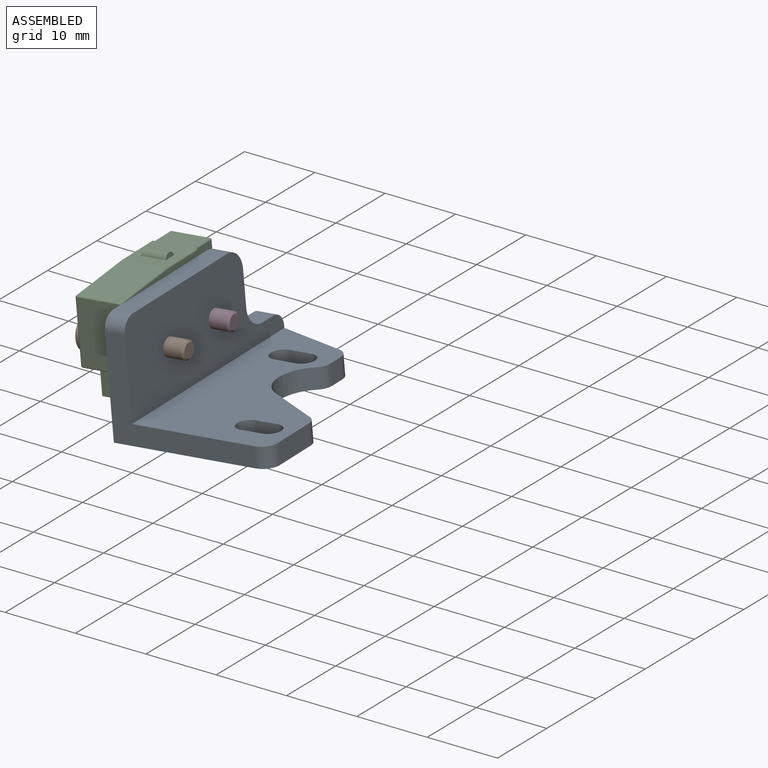
[diagram: assembled view]
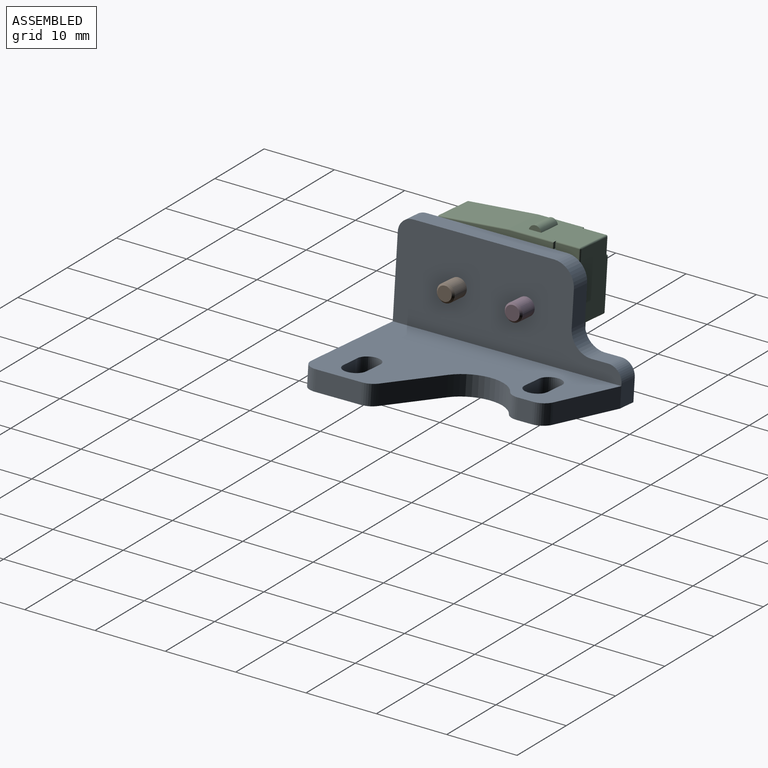
[diagram: assembled view, second angle]
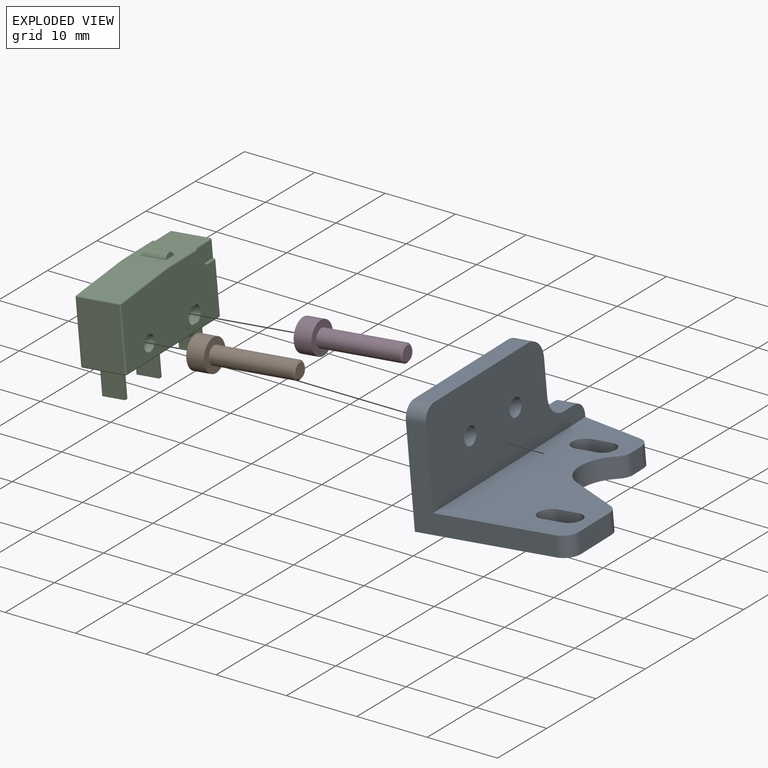
[diagram: exploded view]
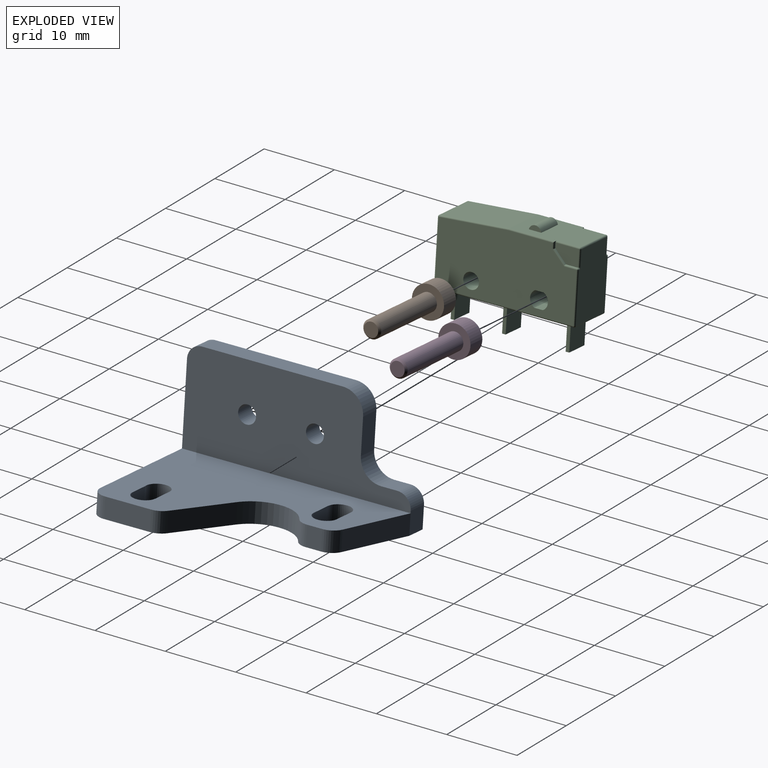
[diagram: exploded view, second angle]
ASSEMBLY  parts=4 mates=3
PART A: 32 faces, bbox 22x32x16 mm
  f0: plane 32x19.2mm, normal (0,0,1), area 374.8mm2, adj f3,f4,f5,f6,f7,f8,f9,f10
  f1: plane 3.1x2.8mm, normal (0,1,0), area 8.7mm2, adj f2,f20,f21,f30,f31
  f2: plane 32x16mm, normal (-1,0,0), area 421mm2, adj f1,f3,f21,f22,f23,f24,f25,f26
  f3: plane 20x14mm, normal (0,-1,0), area 87.4mm2, adj f0,f2,f4,f21,f22,f31
  f4: cylinder r=2mm len=2.8mm, axis (0,0,-1), area 8.8mm2, adj f0,f3,f5,f21
  f5: plane 6.43x2.8mm, normal (1,0,0), area 18mm2, adj f0,f4,f6,f21
  f6: cylinder r=2mm len=2.8mm, axis (0,0,-1), area 5.9mm2, adj f0,f5,f7,f21
  f7: plane 7.8x4.5mm, normal (0.5,0.87,0), area 25.2mm2, adj f0,f6,f8,f21
  f8: cylinder r=5mm len=8.57mm, axis (0,0,-1), area 28.9mm2, adj f0,f7,f9,f21
  f9: cylinder r=2mm len=2.8mm, axis (0,0,-1), area 5.7mm2, adj f0,f8,f10,f21
  f10: plane 2.8x2.12mm, normal (1,0,0), area 5.9mm2, adj f0,f9,f11,f21
  f11: cylinder r=2mm len=2.8mm, axis (0,0,-1), area 7.1mm2, adj f0,f10,f20,f21
  f12: cylinder r=1.6mm len=3.2mm, axis (0,0,-1), area 14.1mm2, adj f0,f13,f18,f21
  f13: plane 3x2.8mm, normal (0,1,0), area 8.4mm2, adj f0,f12,f14,f21
  f14: cylinder r=1.6mm len=3.2mm, axis (0,0,-1), area 14.1mm2, adj f0,f13,f18,f21
  f15: cylinder r=1.58mm len=3.17mm, axis (0,0,-1), area 13.9mm2, adj f0,f16,f19,f21
  f16: plane 2.8x2.68mm, normal (0,1,0), area 7.5mm2, adj f0,f15,f17,f21
  f17: cylinder r=1.6mm len=3.2mm, axis (0,0,-1), area 15mm2, adj f0,f16,f19,f21
  f18: plane 3x2.8mm, normal (0,-1,0), area 8.4mm2, adj f0,f12,f14,f21
  f19: plane 3x2.8mm, normal (0,-1,0), area 8.4mm2, adj f0,f15,f17,f21
  f20: plane 9.79x3.02mm, normal (0.29,0.96,0), area 28.7mm2, adj f0,f1,f11,f21
  f21: plane 32x22mm, normal (0,0,-1), area 464.4mm2, adj f1,f2,f3,f4,f5,f6,f7,f8
  f22: cylinder r=2mm len=2.8mm, axis (-1,0,0), area 8.8mm2, adj f2,f3,f23,f31
  f23: plane 19.71x2.8mm, normal (0,0,1), area 55.2mm2, adj f2,f22,f24,f31
  f24: cylinder r=3mm len=3mm, axis (-1,0,0), area 13.2mm2, adj f2,f23,f25,f31
  f25: plane 4.9x2.8mm, normal (0,1,0), area 13.7mm2, adj f2,f24,f26,f31
  f26: cylinder r=3mm len=3mm, axis (-1,0,0), area 13.2mm2, adj f2,f25,f27,f31
  f27: plane 2.8x2.29mm, normal (0,0,1), area 6.4mm2, adj f2,f26,f30,f31
  f28: cylinder r=1.25mm len=2.8mm, axis (-1,0,0), area 22mm2, adj f2,f31
  f29: cylinder r=1.25mm len=2.8mm, axis (-1,0,0), area 22mm2, adj f2,f31
  f30: cylinder r=2mm len=2.8mm, axis (-1,0,0), area 8.8mm2, adj f1,f2,f27,f31
  f31: plane 32x13.2mm, normal (1,0,0), area 331.4mm2, adj f0,f1,f3,f22,f23,f24,f25,f26
PART B: 13 faces, bbox 4.5x4.5x14.5 mm
  f0: plane 4.5x4.5mm, normal (0,0,-1), area 12.4mm2, adj f2,f6,f7,f8,f9,f10,f11
  f1: plane 2x2mm, normal (0,0,1), area 3.1mm2, adj f5
  f2: cylinder r=2.25mm len=4.5mm, axis (0,0,-1), area 35.3mm2, adj f0,f3
  f3: plane 4.5x4.5mm, normal (0,0,1), area 11mm2, adj f2,f4
  f4: cylinder r=1.25mm len=11.75mm, axis (0,0,-1), area 92.3mm2, adj f3,f5
  f5: cone r=1.25mm half-angle=45deg, axis (0,0,-1), area 2.5mm2, adj f1,f4
  f6: plane 1.15x1.1mm, normal (-1,0,0), area 1.3mm2, adj f0,f7,f11,f12
  f7: plane 1.1x1mm, normal (-0.5,-0.87,0), area 1.3mm2, adj f0,f6,f8,f12
  f8: plane 1.1x1mm, normal (0.5,-0.87,0), area 1.3mm2, adj f0,f7,f9,f12
  f9: plane 1.15x1.1mm, normal (1,0,0), area 1.3mm2, adj f0,f8,f10,f12
  f10: plane 1.1x1mm, normal (0.5,0.87,0), area 1.3mm2, adj f0,f9,f11,f12
  f11: plane 1.1x1mm, normal (-0.5,0.87,0), area 1.3mm2, adj f0,f6,f10,f12
  f12: plane 2.31x2mm, normal (0,0,-1), area 3.5mm2, adj f6,f7,f8,f9,f10,f11
PART C: 80 faces, bbox 19.9x6.5x14.6 mm
  f0: plane 1.7x0.1mm, normal (0,0,1), area 0.2mm2, adj f1,f15,f19,f26
  f1: plane 1.6x1.6mm, normal (-0.71,0,0.71), area 0.2mm2, adj f0,f15,f21,f48
  f2: sphere r=0.2mm, area 0.1mm2, adj f19,f26,f27
  f3: sphere r=0.2mm, area 0mm2, adj f27,f32,f33
  f4: plane 3.2x0.5mm, normal (0,0,-1), area 1.6mm2, adj f5,f6,f34,f35
  f5: plane 3.9x0.5mm, normal (0,-1,0), area 2mm2, adj f4,f34,f35,f60
  f6: plane 3.9x0.5mm, normal (0,1,0), area 2mm2, adj f4,f34,f35,f60
  f7: plane 3.2x0.5mm, normal (0,0,-1), area 1.6mm2, adj f8,f9,f36,f37
  f8: plane 3.9x0.5mm, normal (0,-1,0), area 2mm2, adj f7,f36,f37,f60
  f9: plane 3.9x0.5mm, normal (0,1,0), area 2mm2, adj f7,f36,f37,f60
  f10: plane 3.2x0.5mm, normal (0,0,-1), area 1.6mm2, adj f11,f12,f38,f39
  f11: plane 3.9x0.5mm, normal (0,-1,0), area 2mm2, adj f10,f38,f39,f60
  f12: plane 3.9x0.5mm, normal (0,1,0), area 2mm2, adj f10,f38,f39,f60
  f13: sphere r=0.2mm, area 0.1mm2, adj f33,f40,f41
  f14: sphere r=0.2mm, area 0.1mm2, adj f40,f42,f43
  f15: plane 3.3x2.3mm, normal (0,1,0), area 6.3mm2, adj f0,f1,f31,f48,f49
  f16: sphere r=0.2mm, area 0.1mm2, adj f31,f49,f50
  f17: sphere r=0.2mm, area 0.1mm2, adj f30,f50,f51
  f18: cylinder r=1.25mm len=6.4mm, axis (0,-1,0), area 17.2mm2, adj f52,f53,f54,f79
  f19: cylinder r=0.2mm len=1.7mm, axis (1,0,0), area 0.5mm2, adj f0,f2,f20,f54
  f20: bspline ~0.2x0.2mm, area 0mm2, adj f19,f21,f54
  f21: cylinder r=0.2mm len=1.74mm, axis (0.71,0,0.71), area 0.7mm2, adj f1,f20,f22,f54
  f22: bspline ~0.2x0.2mm, area 0mm2, adj f21,f23,f54
  f23: cylinder r=0.2mm len=0.9mm, axis (0,0,1), area 0.3mm2, adj f22,f47,f48,f54
  f24: plane 3.3x2.3mm, normal (0,-1,0), area 6.3mm2, adj f30,f51,f55,f56,f66
  f25: bspline ~0.2x0.2mm, area 0mm2, adj f26,f31,f58
  f26: cylinder r=0.2mm len=0.2mm, axis (0,1,0), area 0mm2, adj f0,f2,f25,f58
  f27: cylinder r=0.2mm len=7mm, axis (0,0,1), area 2.2mm2, adj f2,f3,f54,f58
  f28: cylinder r=0.2mm len=0.2mm, axis (0,1,0), area 0mm2, adj f29,f56,f57,f58
  f29: bspline ~0.2x0.2mm, area 0mm2, adj f28,f30,f58
  f30: cylinder r=0.2mm len=2.3mm, axis (0,0,1), area 0.7mm2, adj f17,f24,f29,f58
  f31: cylinder r=0.2mm len=2.3mm, axis (0,0,-1), area 0.7mm2, adj f15,f16,f25,f58
  f32: cylinder r=0.2mm len=6mm, axis (0,-1,0), area 1.9mm2, adj f3,f58,f59,f60
  f33: cylinder r=0.2mm len=19.4mm, axis (1,0,0), area 6.1mm2, adj f3,f13,f54,f60
  f34: plane 3.9x3.2mm, normal (1,0,0), area 12.5mm2, adj f4,f5,f6,f60
  f35: plane 3.9x3.2mm, normal (-1,0,0), area 12.5mm2, adj f4,f5,f6,f60
  f36: plane 3.9x3.2mm, normal (1,0,0), area 12.5mm2, adj f7,f8,f9,f60
  f37: plane 3.9x3.2mm, normal (-1,0,0), area 12.5mm2, adj f7,f8,f9,f60
  f38: plane 3.9x3.2mm, normal (1,0,0), area 12.5mm2, adj f10,f11,f12,f60
  f39: plane 3.9x3.2mm, normal (-1,0,0), area 12.5mm2, adj f10,f11,f12,f60
  f40: cylinder r=0.2mm len=8.72mm, axis (0,0,1), area 2.7mm2, adj f13,f14,f54,f61
  f41: cylinder r=0.2mm len=6mm, axis (0,-1,0), area 1.9mm2, adj f13,f60,f61,f62
  f42: cylinder r=0.2mm len=9.73mm, axis (-1,0,0.08), area 3.1mm2, adj f14,f47,f54,f63
  f43: cylinder r=0.2mm len=6mm, axis (0,-1,0), area 1.8mm2, adj f14,f61,f63,f64
  f44: plane 1.76x0.7mm, normal (0,1,0), area 0.9mm2, adj f46,f65
  f45: plane 1.76x0.7mm, normal (0,-1,0), area 0.9mm2, adj f46,f65
  f46: cylinder r=0.9mm len=3.5mm, axis (0,-1,0), area 8.5mm2, adj f44,f45,f65
  f47: cylinder r=0.2mm len=6.4mm, axis (1,0,0), area 2mm2, adj f23,f42,f54,f65
  f48: plane 0.9x0.3mm, normal (-1,0,0), area 0.1mm2, adj f1,f15,f23,f49,f65
  f49: cylinder r=0.2mm len=3.3mm, axis (-1,0,0), area 1mm2, adj f15,f16,f48,f65
  f50: cylinder r=0.2mm len=5.4mm, axis (0,-1,0), area 1.7mm2, adj f16,f17,f58,f65
  f51: cylinder r=0.2mm len=3.3mm, axis (1,0,0), area 1mm2, adj f17,f24,f65,f66
  f52: plane 6.4x1.19mm, normal (0,0,1), area 7.6mm2, adj f18,f54,f67,f79
  f53: plane 6.4x1.19mm, normal (0,0,-1), area 7.6mm2, adj f18,f54,f67,f79
  f54: plane 19.4x9.5mm, normal (0,1,0), area 164.7mm2, adj f18,f19,f20,f21,f22,f23,f27,f33
  f55: plane 1.6x1.6mm, normal (-0.71,0,0.71), area 0.2mm2, adj f24,f56,f66,f69
  f56: plane 1.7x0.1mm, normal (0,0,1), area 0.2mm2, adj f24,f28,f55,f71
  f57: sphere r=0.2mm, area 0.1mm2, adj f28,f71,f72
  f58: plane 9.56x6.06mm, normal (-1,0,0), area 55.5mm2, adj f25,f26,f27,f28,f29,f30,f31,f32
  f59: sphere r=0.2mm, area 0.1mm2, adj f32,f72,f73
  f60: plane 19.4x6mm, normal (0,0,-1), area 111.6mm2, adj f5,f6,f8,f9,f11,f12,f32,f33
  f61: plane 8.72x6mm, normal (1,0,0), area 52.3mm2, adj f40,f41,f43,f74
  f62: sphere r=0.2mm, area 0.1mm2, adj f41,f73,f74
  f63: plane 9.72x6mm, normal (0.08,0,1), area 58.5mm2, adj f42,f43,f65,f75
  f64: sphere r=0.2mm, area 0.1mm2, adj f43,f74,f75
  f65: plane 9.7x6mm, normal (0,0,1), area 50.1mm2, adj f44,f45,f46,f47,f48,f49,f50,f51
  f66: plane 0.9x0.3mm, normal (-1,0,0), area 0.1mm2, adj f24,f51,f55,f65,f77
  f67: cylinder r=1.25mm len=6.4mm, axis (0,-1,0), area 17.2mm2, adj f52,f53,f54,f79
  f68: cylinder r=1.1mm len=6.4mm, axis (0,-1,0), area 44.2mm2, adj f54,f79
  f69: cylinder r=0.2mm len=1.74mm, axis (-0.71,0,-0.71), area 0.7mm2, adj f55,f70,f78,f79
  f70: bspline ~0.2x0.2mm, area 0mm2, adj f69,f71,f79
  f71: cylinder r=0.2mm len=1.7mm, axis (-1,0,0), area 0.5mm2, adj f56,f57,f70,f79
  f72: cylinder r=0.2mm len=7mm, axis (0,0,1), area 2.2mm2, adj f57,f58,f59,f79
  f73: cylinder r=0.2mm len=19.4mm, axis (-1,0,0), area 6.1mm2, adj f59,f60,f62,f79
  f74: cylinder r=0.2mm len=8.72mm, axis (0,0,-1), area 2.7mm2, adj f61,f62,f64,f79
  f75: cylinder r=0.2mm len=9.73mm, axis (1,0,-0.08), area 3.1mm2, adj f63,f64,f76,f79
  f76: cylinder r=0.2mm len=6.4mm, axis (1,0,0), area 2mm2, adj f65,f75,f77,f79
  f77: cylinder r=0.2mm len=0.9mm, axis (0,0,-1), area 0.3mm2, adj f66,f76,f78,f79
  f78: bspline ~0.2x0.2mm, area 0mm2, adj f69,f77,f79
  f79: plane 19.41x9.51mm, normal (0,-1,0), area 164.7mm2, adj f18,f52,f53,f67,f68,f69,f70,f71
PART D: same geometry as B
PLACE A rot(axis=(-0.01,-0.97,0.24),5.4deg) t=(-35.96,-36.97,10.96)mm
PLACE B rot(axis=(-0.01,1,0.01),84.8deg) t=(2.09,-77.31,63.89)mm
PLACE C rot(axis=(0.05,-0.05,-1),88.8deg) t=(10.38,-22.43,22.29)mm
PLACE D rot(axis=(-0.01,1,0.01),84.8deg) t=(1.87,-67.81,63.88)mm
MATE fastened C.f18 <-> A.f29  axis (1,0.02,0.09) through (13.25,-17.61,24.77)mm
MATE fastened B.f2 <-> C.f68  axis (-1,-0.02,-0.09) through (7.1,-27.26,24.2)mm
MATE fastened D.f2 <-> C.f18  axis (1,0.02,0.09) through (6.88,-17.76,24.18)mm
